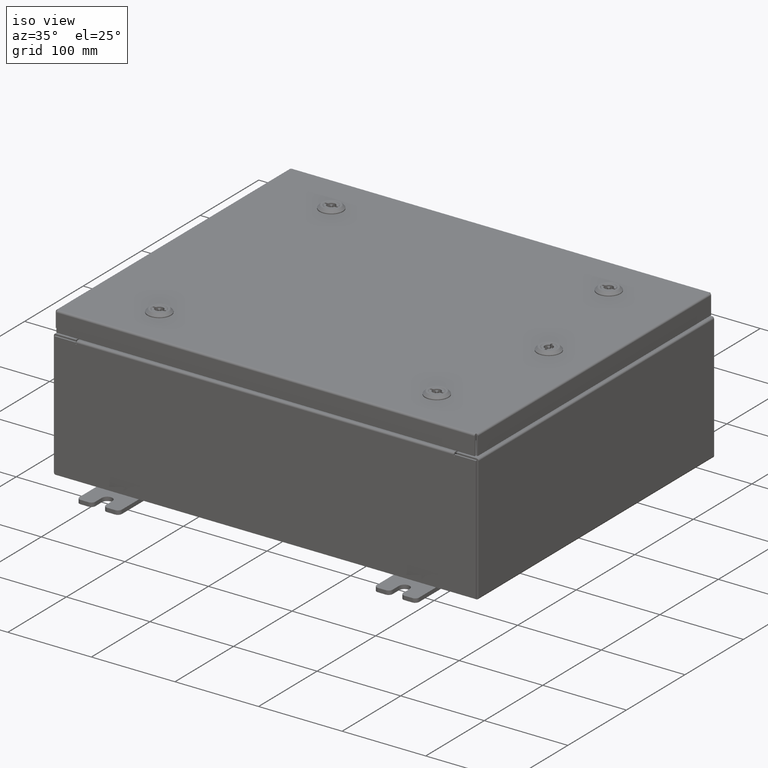
[diagram: clean part render]
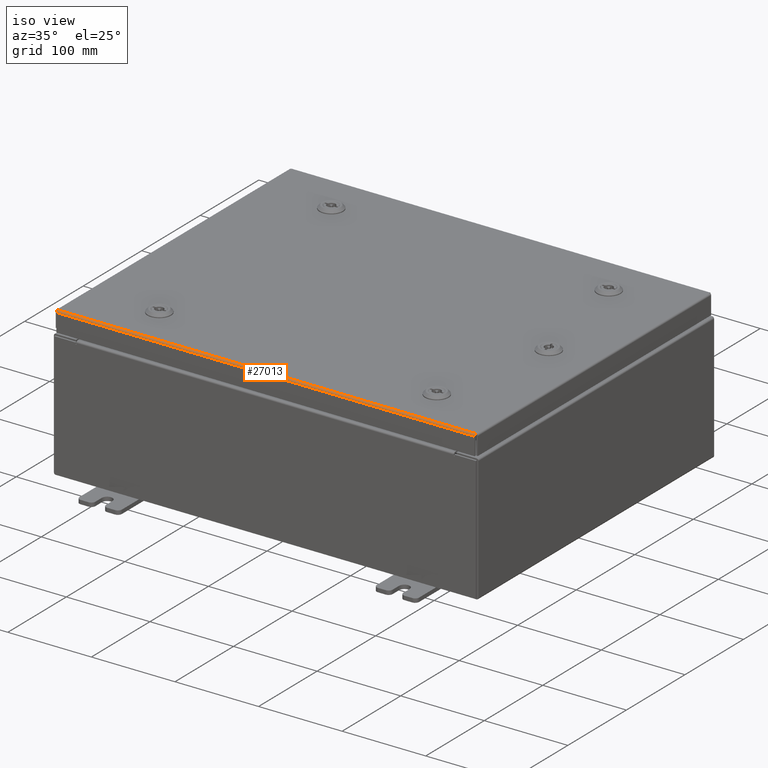
[diagram: same view with one face highlighted and labeled with its STEP entity id]
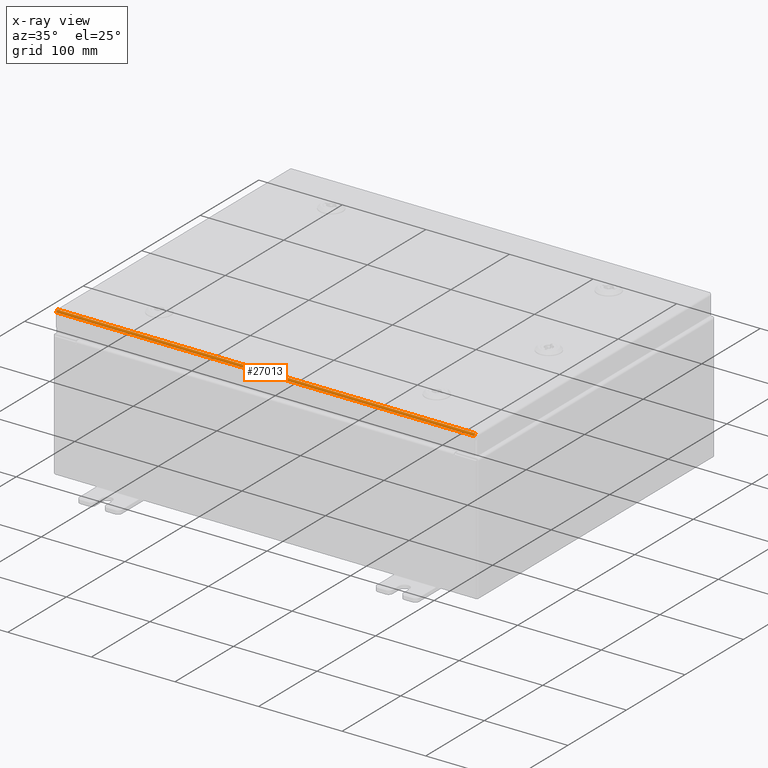
[diagram: x-ray of the same camera — body ghosted, the highlighted face saturated]
A machine part, iso view. The second image highlights one B-rep face of the part: STEP entity #27013.
The next image is the same camera in x-ray: the body ghosted, the highlighted face saturated — about 0% of this face is hidden behind the body in this view.
In plain terms, the highlighted cylindrical surface (edge-blend (fillet) strip) has radius 2.2276 mm, axis along (-1, 0, 0).
Its self-contained STEP definition (entity closure, byte-faithful):
#549 = B_SPLINE_CURVE_WITH_KNOTS ( 'NONE', 3,
 ( #61142, #22373, #17725, #51752, #22573, #56664, #27489, #61556, #32388, #3295 ),
 .UNSPECIFIED., .F., .F.,
 ( 4, 2, 2, 2, 4 ),
 ( 0.0000000000000000000, 0.2500000000000000000, 0.5000000000000000000, 0.7500000000000000000, 1.000000000000000000 ),
 .UNSPECIFIED. ) ;
#793 = ORIENTED_EDGE ( 'NONE', *, *, #17737, .T. ) ;
#1851 = CARTESIAN_POINT ( 'NONE',  ( -9.848657864376269400, -7.937499999999999100, -0.08769999999999997200 ) ) ;
#2099 = EDGE_LOOP ( 'NONE', ( #43252, #61914, #793, #52751 ) ) ;
#2427 = CARTESIAN_POINT ( 'NONE',  ( 9.937500000000001800, -7.937499999999999100, -0.08769999999999997200 ) ) ;
#3295 = CARTESIAN_POINT ( 'NONE',  ( 9.848657864376273000, -7.937499999999999100, -0.08769999999999997200 ) ) ;
#3678 = CARTESIAN_POINT ( 'NONE',  ( -9.849133754219488800, -7.919930782078320200, -0.03380425265820006400 ) ) ;
#6720 = LINE ( 'NONE', #2427, #58471 ) ;
#8300 = VERTEX_POINT ( 'NONE', #32116 ) ;
#8573 = CARTESIAN_POINT ( 'NONE',  ( -9.849419288125421400, -7.893967384578528100, -0.01106893374133177300 ) ) ;
#9227 = CYLINDRICAL_SURFACE ( 'NONE', #55309, 0.08770000000000026400 ) ;
#10745 = FACE_OUTER_BOUND ( 'NONE', #2099, .T. ) ;
#13454 = CARTESIAN_POINT ( 'NONE',  ( -9.849704822031354100, -7.861279903154992300, -2.224295180388261000E-016 ) ) ;
#14390 = EDGE_CURVE ( 'NONE', #29521, #8300, #33985, .T. ) ;
#14999 = DIRECTION ( 'NONE',  ( 1.000000000000000000, -0.0000000000000000000, -0.0000000000000000000 ) ) ;
#17725 = CARTESIAN_POINT ( 'NONE',  ( 9.849609644062715200, -7.872755289458309500, -0.002282596256188945100 ) ) ;
#17737 = EDGE_CURVE ( 'NONE', #29521, #38439, #6720, .T. ) ;
#22308 = VERTEX_POINT ( 'NONE', #29870 ) ;
#22373 = CARTESIAN_POINT ( 'NONE',  ( 9.849704822031359400, -7.861279903154991400, -2.229964298539175300E-016 ) ) ;
#22573 = CARTESIAN_POINT ( 'NONE',  ( 9.849324110156782600, -7.903695747341799900, -0.01756921792167975800 ) ) ;
#23744 = DIRECTION ( 'NONE',  ( 0.0000000000000000000, -1.000000000000000000, 3.893740013774593800E-015 ) ) ;
#23815 = VECTOR ( 'NONE', #14999, 39.37007874015748100 ) ;
#27013 = ADVANCED_FACE ( 'NONE', ( #10745 ), #9227, .T. ) ;
#27489 = CARTESIAN_POINT ( 'NONE',  ( 9.849038576250846300, -7.926431066258667900, -0.04353261542147220100 ) ) ;
#27678 = CARTESIAN_POINT ( 'NONE',  ( -9.848753042344910100, -7.937499999999997300, -0.07622009684500727400 ) ) ;
#29521 = VERTEX_POINT ( 'NONE', #1851 ) ;
#29870 = CARTESIAN_POINT ( 'NONE',  ( 9.849800000000001900, -7.849799999999999200, -2.048885995248197400E-016 ) ) ;
#32116 = CARTESIAN_POINT ( 'NONE',  ( -9.849799999999996600, -7.849799999999999200, -2.219626494852214000E-016 ) ) ;
#32388 = CARTESIAN_POINT ( 'NONE',  ( 9.848753042344915400, -7.937499999999999100, -0.07622009684500730100 ) ) ;
#32795 = CARTESIAN_POINT ( 'NONE',  ( -9.849038576250844600, -7.926431066258667900, -0.04353261542147220100 ) ) ;
#33985 = B_SPLINE_CURVE_WITH_KNOTS ( 'NONE', 3,
 ( #51310, #27678, #61946, #32795, #3678, #37657, #8573, #42567, #13454, #47469 ),
 .UNSPECIFIED., .F., .F.,
 ( 4, 2, 2, 2, 4 ),
 ( 0.0000000000000000000, 0.2500000000000000000, 0.5000000000000000000, 0.7500000000000000000, 1.000000000000000000 ),
 .UNSPECIFIED. ) ;
#36771 = LINE ( 'NONE', #44137, #23815 ) ;
#37657 = CARTESIAN_POINT ( 'NONE',  ( -9.849324110156775400, -7.903695747341799900, -0.01756921792167976200 ) ) ;
#38439 = VERTEX_POINT ( 'NONE', #56952 ) ;
#42567 = CARTESIAN_POINT ( 'NONE',  ( -9.849609644062709900, -7.872755289458309500, -0.002282596256188945500 ) ) ;
#43252 = ORIENTED_EDGE ( 'NONE', *, *, #54442, .F. ) ;
#44137 = CARTESIAN_POINT ( 'NONE',  ( -9.849799999999996600, -7.849799999999999200, -2.219626494852214000E-016 ) ) ;
#46203 = DIRECTION ( 'NONE',  ( 1.000000000000000000, 4.699145404622725200E-031, -1.802587771145536000E-045 ) ) ;
#47469 = CARTESIAN_POINT ( 'NONE',  ( -9.849799999999996600, -7.849799999999999200, -2.219626494852214000E-016 ) ) ;
#48043 = DIRECTION ( 'NONE',  ( -1.000000000000000000, 0.0000000000000000000, 0.0000000000000000000 ) ) ;
#51310 = CARTESIAN_POINT ( 'NONE',  ( -9.848657864376269400, -7.937499999999999100, -0.08769999999999997200 ) ) ;
#51752 = CARTESIAN_POINT ( 'NONE',  ( 9.849419288125425000, -7.893967384578527200, -0.01106893374133177300 ) ) ;
#52751 = ORIENTED_EDGE ( 'NONE', *, *, #62183, .F. ) ;
#52929 = CARTESIAN_POINT ( 'NONE',  ( -9.849799999999996600, -7.849799999999999200, -0.08770000000000031900 ) ) ;
#54442 = EDGE_CURVE ( 'NONE', #8300, #22308, #36771, .T. ) ;
#55309 = AXIS2_PLACEMENT_3D ( 'NONE', #52929, #48043, #23744 ) ;
#56664 = CARTESIAN_POINT ( 'NONE',  ( 9.849133754219494100, -7.919930782078321100, -0.03380425265820006400 ) ) ;
#56952 = CARTESIAN_POINT ( 'NONE',  ( 9.848657864376273000, -7.937499999999999100, -0.08769999999999997200 ) ) ;
#58471 = VECTOR ( 'NONE', #46203, 39.37007874015748100 ) ;
#61142 = CARTESIAN_POINT ( 'NONE',  ( 9.849800000000001900, -7.849799999999999200, -2.048885995248197400E-016 ) ) ;
#61556 = CARTESIAN_POINT ( 'NONE',  ( 9.848848220313561400, -7.935217403743811500, -0.06474471054169114700 ) ) ;
#61914 = ORIENTED_EDGE ( 'NONE', *, *, #14390, .F. ) ;
#61946 = CARTESIAN_POINT ( 'NONE',  ( -9.848848220313559700, -7.935217403743811500, -0.06474471054169114700 ) ) ;
#62183 = EDGE_CURVE ( 'NONE', #22308, #38439, #549, .T. ) ;